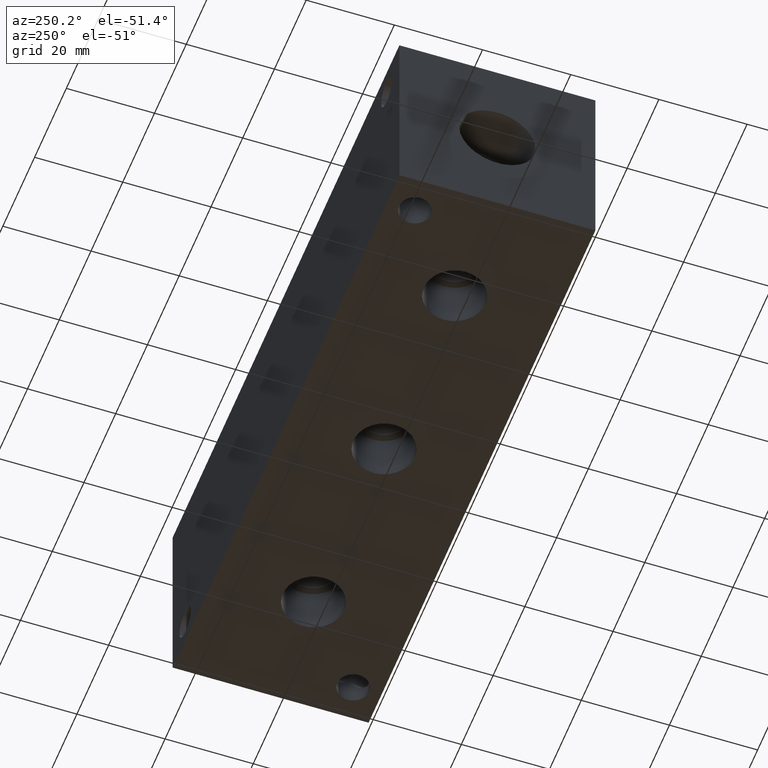
[diagram: clean part render]
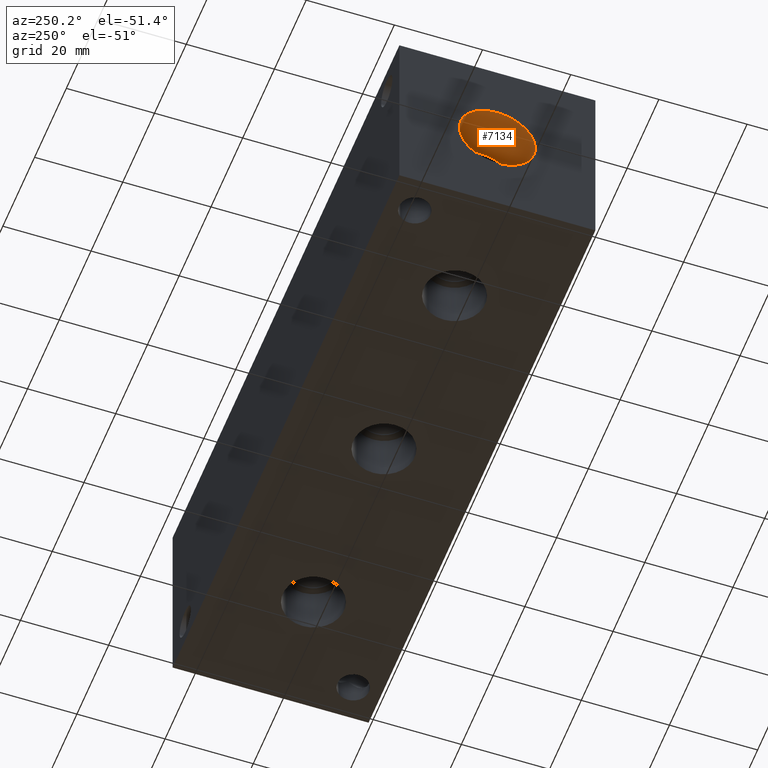
[diagram: same view with one face highlighted and labeled with its STEP entity id]
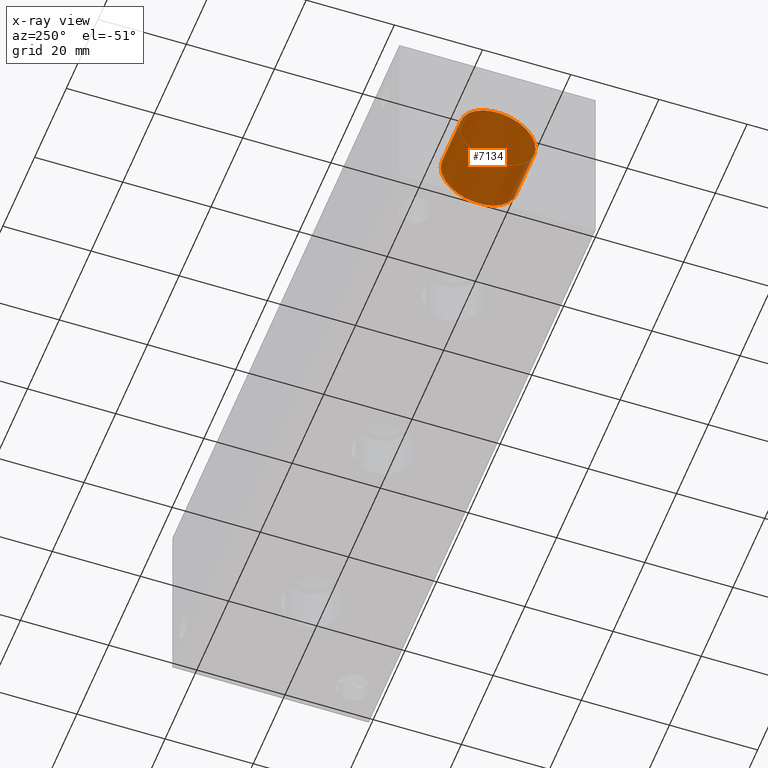
[diagram: x-ray of the same camera — body ghosted, the highlighted face saturated]
A machine part, auxiliary view. The second image highlights one B-rep face of the part: STEP entity #7134.
The next image is the same camera in x-ray: the body ghosted, the highlighted face saturated — about 2% of this face is hidden behind the body in this view.
In plain terms, the highlighted cylindrical surface (bore or boss wall) has radius 8.6487 mm, axis along (-1, 0, 0).
Its self-contained STEP definition (entity closure, byte-faithful):
#30=CYLINDRICAL_SURFACE('',#7461,8.6487);
#94=CIRCLE('',#7458,8.6487);
#95=CIRCLE('',#7459,8.6487);
#97=CIRCLE('',#7462,8.6487);
#98=CIRCLE('',#7463,8.6487);
#781=FACE_OUTER_BOUND('',#1181,.T.);
#1181=EDGE_LOOP('',(#6103,#6104,#6105,#6106,#6107,#6108));
#1916=LINE('',#12000,#2636);
#2636=VECTOR('',#8793,8.6487);
#3284=VERTEX_POINT('',#11989);
#3285=VERTEX_POINT('',#11990);
#3287=VERTEX_POINT('',#11996);
#3288=VERTEX_POINT('',#11997);
#4238=EDGE_CURVE('',#3284,#3285,#94,.T.);
#4239=EDGE_CURVE('',#3285,#3284,#95,.T.);
#4241=EDGE_CURVE('',#3287,#3288,#97,.T.);
#4242=EDGE_CURVE('',#3288,#3287,#98,.T.);
#4243=EDGE_CURVE('',#3288,#3285,#1916,.T.);
#6103=ORIENTED_EDGE('',*,*,#4241,.F.);
#6104=ORIENTED_EDGE('',*,*,#4242,.F.);
#6105=ORIENTED_EDGE('',*,*,#4243,.T.);
#6106=ORIENTED_EDGE('',*,*,#4238,.F.);
#6107=ORIENTED_EDGE('',*,*,#4239,.F.);
#6108=ORIENTED_EDGE('',*,*,#4243,.F.);
#7134=ADVANCED_FACE('',(#781),#30,.F.);
#7458=AXIS2_PLACEMENT_3D('',#11991,#8781,#8782);
#7459=AXIS2_PLACEMENT_3D('',#11992,#8783,#8784);
#7461=AXIS2_PLACEMENT_3D('',#11995,#8787,#8788);
#7462=AXIS2_PLACEMENT_3D('',#11998,#8789,#8790);
#7463=AXIS2_PLACEMENT_3D('',#11999,#8791,#8792);
#8781=DIRECTION('center_axis',(-1.,0.,0.));
#8782=DIRECTION('ref_axis',(0.,1.,0.));
#8783=DIRECTION('center_axis',(-1.,0.,0.));
#8784=DIRECTION('ref_axis',(0.,1.,0.));
#8787=DIRECTION('center_axis',(-1.,0.,0.));
#8788=DIRECTION('ref_axis',(0.,1.,0.));
#8789=DIRECTION('center_axis',(1.,0.,0.));
#8790=DIRECTION('ref_axis',(0.,1.,0.));
#8791=DIRECTION('center_axis',(1.,0.,0.));
#8792=DIRECTION('ref_axis',(0.,1.,0.));
#8793=DIRECTION('',(1.,0.,0.));
#11989=CARTESIAN_POINT('',(11.7348,30.8737,22.225));
#11990=CARTESIAN_POINT('',(11.7348,13.5763,22.225));
#11991=CARTESIAN_POINT('Origin',(11.7348,22.225,22.225));
#11992=CARTESIAN_POINT('Origin',(11.7348,22.225,22.225));
#11995=CARTESIAN_POINT('Origin',(5.8674,22.225,22.225));
#11996=CARTESIAN_POINT('',(0.,30.8737,22.225));
#11997=CARTESIAN_POINT('',(0.,13.5763,22.225));
#11998=CARTESIAN_POINT('Origin',(0.,22.225,22.225));
#11999=CARTESIAN_POINT('Origin',(0.,22.225,22.225));
#12000=CARTESIAN_POINT('',(5.8674,13.5763,22.225));